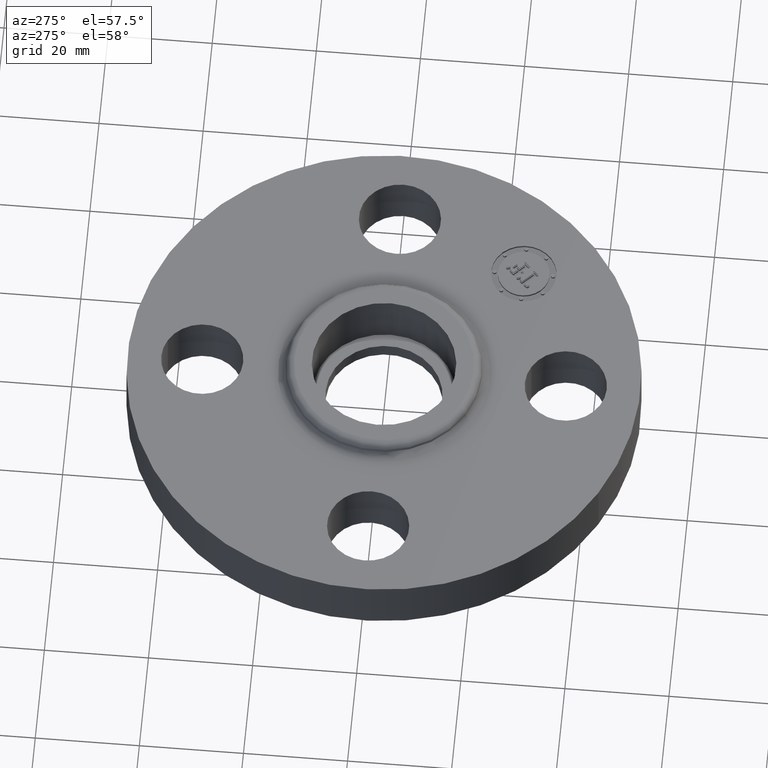
[diagram: clean part render]
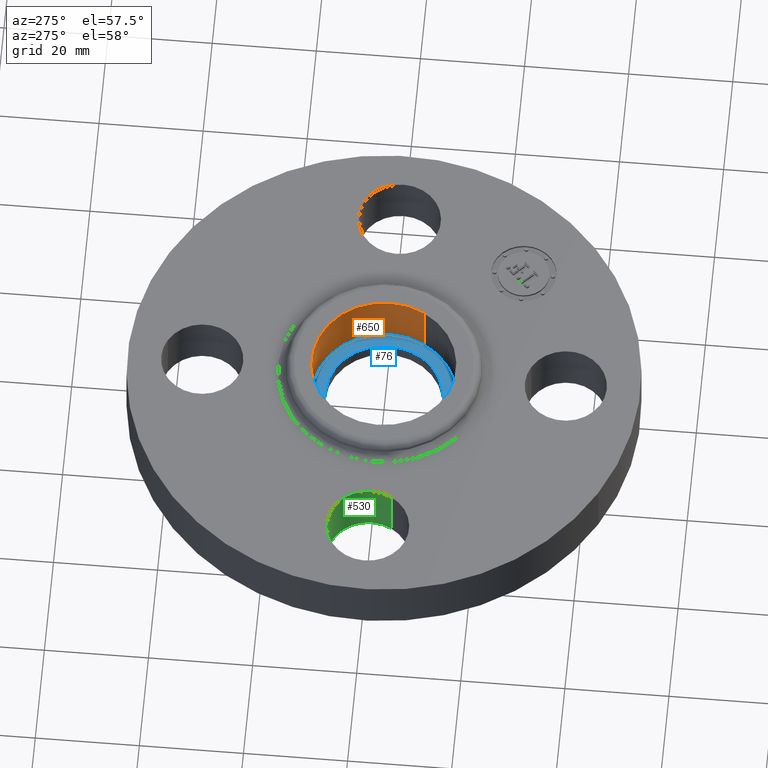
[diagram: same view with three faces highlighted in distinct colors, each labeled with its STEP entity id]
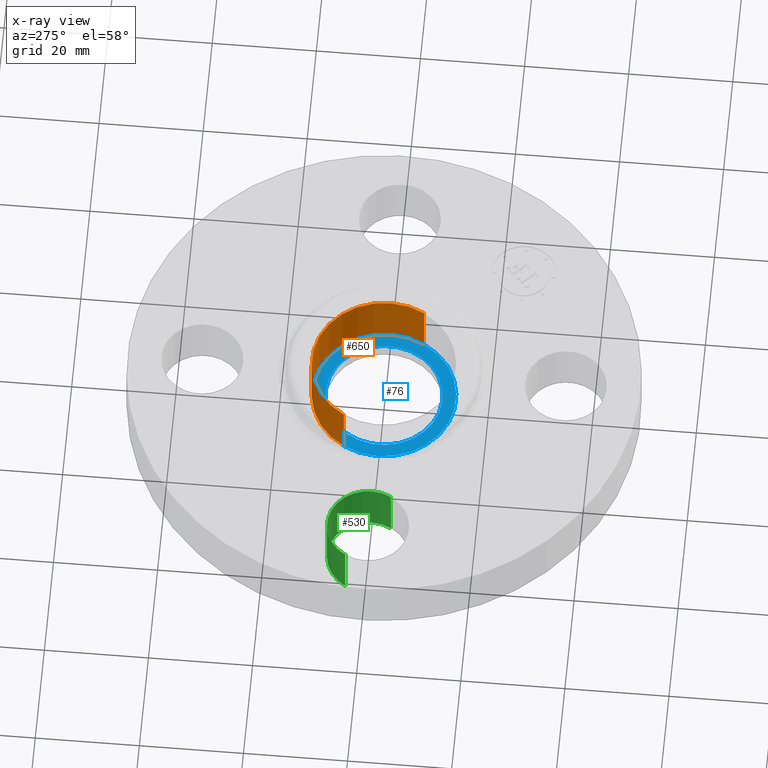
[diagram: x-ray of the same camera — body ghosted, the three highlighted faces saturated]
A machine part, auxiliary view with three faces highlighted in distinct colors.
The next image is the same camera in x-ray (body ghosted, the three faces saturated) — at least one of them is partly hidden behind the body in this view.
Their STEP definitions:

[orange] entity #650 — the highlighted cylindrical surface (partial cylindrical patch) has radius 13.843 mm, axis along (0, 0, -1).
#42=AXIS2_PLACEMENT_3D('Circle Axis2P3D',#40,#41,$) ;
#440=AXIS2_PLACEMENT_3D('Circle Axis2P3D',#438,#439,$) ;
#632=AXIS2_PLACEMENT_3D('Cylinder Axis2P3D',#629,#630,#631) ;
#40=CARTESIAN_POINT('Axis2P3D Location',(0.,-6.99353086378E-017,0.12)) ;
#44=CARTESIAN_POINT('Vertex',(-0.478282496232,0.26128691854,0.12)) ;
#46=CARTESIAN_POINT('Vertex',(0.478282496232,-0.26128691854,0.12)) ;
#438=CARTESIAN_POINT('Axis2P3D Location',(0.,1.39870617276E-016,0.560000000002)) ;
#442=CARTESIAN_POINT('Vertex',(-0.478282496232,0.26128691854,0.560000000002)) ;
#444=CARTESIAN_POINT('Vertex',(0.478282496232,-0.26128691854,0.560000000002)) ;
#629=CARTESIAN_POINT('Axis2P3D Location',(0.,-6.99353086378E-017,0.556062992128)) ;
#634=CARTESIAN_POINT('Line Origine',(-0.478282496232,0.26128691854,0.340000000001)) ;
#639=CARTESIAN_POINT('Line Origine',(0.478282496232,-0.26128691854,0.340000000001)) ;
#41=DIRECTION('Axis2P3D Direction',(0.,0.,-0.0393700787402)) ;
#439=DIRECTION('Axis2P3D Direction',(0.,0.,-0.0393700787402)) ;
#630=DIRECTION('Axis2P3D Direction',(0.,0.,-0.0393700787402)) ;
#631=DIRECTION('Axis2P3D XDirection',(0.0345504945626,-0.0188750212049,0.)) ;
#635=DIRECTION('Vector Direction',(0.,0.,-0.0393700787402)) ;
#640=DIRECTION('Vector Direction',(0.,0.,-0.0393700787402)) ;
#636=VECTOR('Line Direction',#635,0.0393700787402) ;
#641=VECTOR('Line Direction',#640,0.0393700787402) ;
#645=ORIENTED_EDGE('',*,*,#446,.F.) ;
#646=ORIENTED_EDGE('',*,*,#638,.F.) ;
#647=ORIENTED_EDGE('',*,*,#48,.T.) ;
#648=ORIENTED_EDGE('',*,*,#643,.T.) ;
#650=ADVANCED_FACE('PartBody',(#649),#633,.F.) ;
#43=CIRCLE('generated circle',#42,0.545000000002) ;
#441=CIRCLE('generated circle',#440,0.545000000002) ;
#633=CYLINDRICAL_SURFACE('generated cylinder',#632,0.545000000002) ;
#48=EDGE_CURVE('',#45,#47,#43,.T.) ;
#446=EDGE_CURVE('',#443,#445,#441,.T.) ;
#638=EDGE_CURVE('',#45,#443,#637,.F.) ;
#643=EDGE_CURVE('',#47,#445,#642,.F.) ;
#644=EDGE_LOOP('',(#645,#646,#647,#648)) ;
#649=FACE_OUTER_BOUND('',#644,.T.) ;
#637=LINE('Line',#634,#636) ;
#642=LINE('Line',#639,#641) ;
#45=VERTEX_POINT('',#44) ;
#47=VERTEX_POINT('',#46) ;
#443=VERTEX_POINT('',#442) ;
#445=VERTEX_POINT('',#444) ;

[blue] entity #76 — the highlighted planar face has unit normal (0, 0, -1).
#38=AXIS2_PLACEMENT_3D('Plane Axis2P3D',#35,#36,#37) ;
#42=AXIS2_PLACEMENT_3D('Circle Axis2P3D',#40,#41,$) ;
#51=AXIS2_PLACEMENT_3D('Circle Axis2P3D',#49,#50,$) ;
#60=AXIS2_PLACEMENT_3D('Circle Axis2P3D',#58,#59,$) ;
#69=AXIS2_PLACEMENT_3D('Circle Axis2P3D',#67,#68,$) ;
#35=CARTESIAN_POINT('Axis2P3D Location',(0.,-6.99353086378E-017,0.12)) ;
#40=CARTESIAN_POINT('Axis2P3D Location',(0.,-6.99353086378E-017,0.12)) ;
#44=CARTESIAN_POINT('Vertex',(-0.478282496232,0.26128691854,0.12)) ;
#46=CARTESIAN_POINT('Vertex',(0.478282496232,-0.26128691854,0.12)) ;
#49=CARTESIAN_POINT('Axis2P3D Location',(0.,-6.99353086378E-017,0.12)) ;
#58=CARTESIAN_POINT('Axis2P3D Location',(3.49676543189E-017,-1.74838271595E-017,0.12)) ;
#62=CARTESIAN_POINT('Vertex',(-0.211906088064,-0.387891492357,0.12)) ;
#64=CARTESIAN_POINT('Vertex',(0.211906088064,0.387891492357,0.12)) ;
#67=CARTESIAN_POINT('Axis2P3D Location',(0.,-3.49676543189E-017,0.12)) ;
#36=DIRECTION('Axis2P3D Direction',(0.,0.,-0.0393700787402)) ;
#37=DIRECTION('Axis2P3D XDirection',(0.0393700787402,0.,0.)) ;
#41=DIRECTION('Axis2P3D Direction',(0.,0.,-0.0393700787402)) ;
#50=DIRECTION('Axis2P3D Direction',(0.,0.,-0.0393700787402)) ;
#59=DIRECTION('Axis2P3D Direction',(0.,0.,-0.0393700787402)) ;
#68=DIRECTION('Axis2P3D Direction',(0.,0.,-0.0393700787402)) ;
#55=ORIENTED_EDGE('',*,*,#48,.F.) ;
#56=ORIENTED_EDGE('',*,*,#53,.F.) ;
#73=ORIENTED_EDGE('',*,*,#66,.T.) ;
#74=ORIENTED_EDGE('',*,*,#71,.T.) ;
#75=FACE_BOUND('',#72,.T.) ;
#76=ADVANCED_FACE('PartBody',(#57,#75),#39,.F.) ;
#43=CIRCLE('generated circle',#42,0.545000000002) ;
#52=CIRCLE('generated circle',#51,0.545000000002) ;
#61=CIRCLE('generated circle',#60,0.442000000002) ;
#70=CIRCLE('generated circle',#69,0.442000000002) ;
#48=EDGE_CURVE('',#45,#47,#43,.T.) ;
#53=EDGE_CURVE('',#47,#45,#52,.T.) ;
#66=EDGE_CURVE('',#63,#65,#61,.T.) ;
#71=EDGE_CURVE('',#65,#63,#70,.T.) ;
#54=EDGE_LOOP('',(#55,#56)) ;
#72=EDGE_LOOP('',(#73,#74)) ;
#57=FACE_OUTER_BOUND('',#54,.T.) ;
#39=PLANE('',#38) ;
#45=VERTEX_POINT('',#44) ;
#47=VERTEX_POINT('',#46) ;
#63=VERTEX_POINT('',#62) ;
#65=VERTEX_POINT('',#64) ;

[green] entity #530 — the highlighted cylindrical surface (partial cylindrical patch) has radius 7.874 mm, axis along (-0, 0, -1).
#217=AXIS2_PLACEMENT_3D('Circle Axis2P3D',#215,#216,$) ;
#503=AXIS2_PLACEMENT_3D('Cylinder Axis2P3D',#500,#501,#502) ;
#521=AXIS2_PLACEMENT_3D('Circle Axis2P3D',#519,#520,$) ;
#210=CARTESIAN_POINT('Vertex',(-1.10294940582,-0.148621916968,0.)) ;
#212=CARTESIAN_POINT('Vertex',(-1.64705059419,0.148621916968,0.)) ;
#215=CARTESIAN_POINT('Axis2P3D Location',(-1.37500000001,-2.09805925913E-016,0.)) ;
#500=CARTESIAN_POINT('Axis2P3D Location',(-1.37500000001,-1.68388934883E-016,0.436062992128)) ;
#505=CARTESIAN_POINT('Line Origine',(-1.64705059419,0.148621916968,0.220000000001)) ;
#509=CARTESIAN_POINT('Vertex',(-1.64705059419,0.148621916968,0.440000000002)) ;
#512=CARTESIAN_POINT('Line Origine',(-1.10294940582,-0.148621916968,0.220000000001)) ;
#516=CARTESIAN_POINT('Vertex',(-1.10294940582,-0.148621916968,0.440000000002)) ;
#519=CARTESIAN_POINT('Axis2P3D Location',(-1.37500000001,-1.68388934883E-016,0.440000000002)) ;
#216=DIRECTION('Axis2P3D Direction',(0.,0.,-0.0393700787402)) ;
#501=DIRECTION('Axis2P3D Direction',(-0.,0.,-0.0393700787402)) ;
#502=DIRECTION('Axis2P3D XDirection',(0.0345504945626,-0.0188750212049,-0.)) ;
#506=DIRECTION('Vector Direction',(0.,0.,-0.0393700787402)) ;
#513=DIRECTION('Vector Direction',(0.,0.,-0.0393700787402)) ;
#520=DIRECTION('Axis2P3D Direction',(-0.,0.,-0.0393700787402)) ;
#507=VECTOR('Line Direction',#506,0.0393700787402) ;
#514=VECTOR('Line Direction',#513,0.0393700787402) ;
#525=ORIENTED_EDGE('',*,*,#511,.F.) ;
#526=ORIENTED_EDGE('',*,*,#219,.T.) ;
#527=ORIENTED_EDGE('',*,*,#518,.T.) ;
#528=ORIENTED_EDGE('',*,*,#523,.F.) ;
#530=ADVANCED_FACE('PartBody',(#529),#504,.F.) ;
#218=CIRCLE('generated circle',#217,0.310000000001) ;
#522=CIRCLE('generated circle',#521,0.310000000001) ;
#504=CYLINDRICAL_SURFACE('generated cylinder',#503,0.310000000001) ;
#219=EDGE_CURVE('',#213,#211,#218,.T.) ;
#511=EDGE_CURVE('',#213,#510,#508,.F.) ;
#518=EDGE_CURVE('',#211,#517,#515,.F.) ;
#523=EDGE_CURVE('',#510,#517,#522,.T.) ;
#524=EDGE_LOOP('',(#525,#526,#527,#528)) ;
#529=FACE_OUTER_BOUND('',#524,.T.) ;
#508=LINE('Line',#505,#507) ;
#515=LINE('Line',#512,#514) ;
#211=VERTEX_POINT('',#210) ;
#213=VERTEX_POINT('',#212) ;
#510=VERTEX_POINT('',#509) ;
#517=VERTEX_POINT('',#516) ;